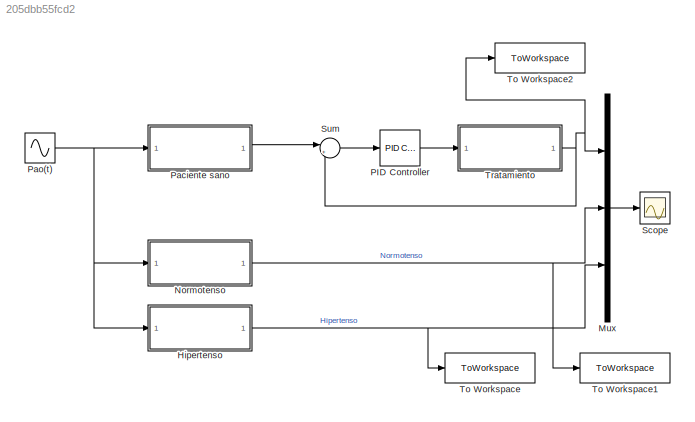
MODEL slx_205dbb55fcd2
KIND model
CONFIG AbsTol = auto
CONFIG EnableMultiTasking = off
CONFIG FixedStep = auto
CONFIG MaxStep = 1e-3
CONFIG MinStep = auto
CONFIG RelTol = 1e-3
CONFIG SampleTimeConstraint = Unconstrained
CONFIG SolverName = ode23s
CONFIG StartTime = 0.0
CONFIG StopTime = 30.0
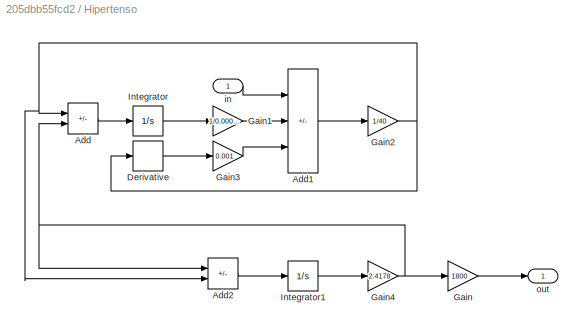
BLOCK [SubSystem] Hipertenso
BLOCK [Sum] Hipertenso/Add
  IconShape = rectangular
  Inputs = +-
BLOCK [Sum] Hipertenso/Add1
  IconShape = rectangular
  Inputs = +--
BLOCK [Sum] Hipertenso/Add2
  IconShape = rectangular
  Inputs = -+
BLOCK [Derivative] Hipertenso/Derivative
BLOCK [Gain] Hipertenso/Gain
  Gain = 1800
BLOCK [Gain] Hipertenso/Gain1
  Gain = 1/0.000220
BLOCK [Gain] Hipertenso/Gain2
  Gain = 1/40
BLOCK [Gain] Hipertenso/Gain3
  Gain = 0.001
BLOCK [Gain] Hipertenso/Gain4
  Gain = 2.4178
BLOCK [Integrator] Hipertenso/Integrator
BLOCK [Integrator] Hipertenso/Integrator1
BLOCK [Inport] Hipertenso/in
BLOCK [Outport] Hipertenso/out
BLOCK [Mux] Mux
  DisplayOption = bar
  Inputs = 3
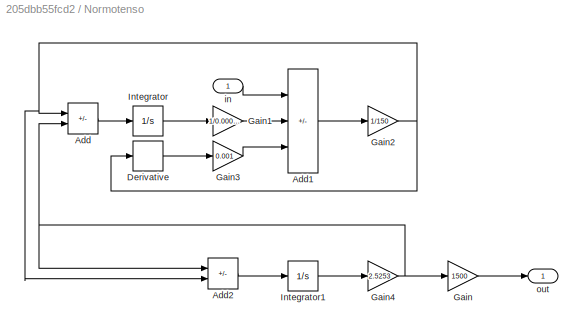
BLOCK [SubSystem] Normotenso
BLOCK [Sum] Normotenso/Add
  IconShape = rectangular
  Inputs = +-
BLOCK [Sum] Normotenso/Add1
  IconShape = rectangular
  Inputs = +--
BLOCK [Sum] Normotenso/Add2
  IconShape = rectangular
  Inputs = -+
BLOCK [Derivative] Normotenso/Derivative
BLOCK [Gain] Normotenso/Gain
  Gain = 1500
BLOCK [Gain] Normotenso/Gain1
  Gain = 1/0.000220
BLOCK [Gain] Normotenso/Gain2
  Gain = 1/150
BLOCK [Gain] Normotenso/Gain3
  Gain = 0.001
BLOCK [Gain] Normotenso/Gain4
  Gain = 2.5253
BLOCK [Integrator] Normotenso/Integrator
BLOCK [Integrator] Normotenso/Integrator1
BLOCK [Inport] Normotenso/in
BLOCK [Outport] Normotenso/out
BLOCK [Reference] PID Controller  REF=slpidlib/PID Controller
  LibrarySourceBlock = simulink/Continuous/PID Controller
  SourceBlock = slpidlib/PID Controller
  SourceType = PID 1dof
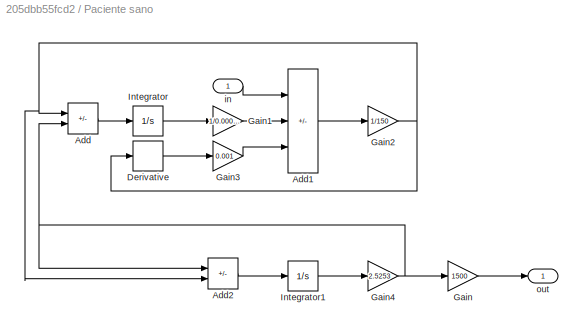
BLOCK [SubSystem] Paciente sano
BLOCK [Sum] Paciente sano/Add
  IconShape = rectangular
  Inputs = +-
BLOCK [Sum] Paciente sano/Add1
  IconShape = rectangular
  Inputs = +--
BLOCK [Sum] Paciente sano/Add2
  IconShape = rectangular
  Inputs = -+
BLOCK [Derivative] Paciente sano/Derivative
BLOCK [Gain] Paciente sano/Gain
  Gain = 1500
BLOCK [Gain] Paciente sano/Gain1
  Gain = 1/0.000220
BLOCK [Gain] Paciente sano/Gain2
  Gain = 1/150
BLOCK [Gain] Paciente sano/Gain3
  Gain = 0.001
BLOCK [Gain] Paciente sano/Gain4
  Gain = 2.5253
BLOCK [Integrator] Paciente sano/Integrator
BLOCK [Integrator] Paciente sano/Integrator1
BLOCK [Inport] Paciente sano/in
BLOCK [Outport] Paciente sano/out
BLOCK [Sin] Pao(t)
  Amplitude = 2.5
  Frequency = 1.5707
BLOCK [Scope] Scope
  Floating = off
  NumInputPorts = 1
  ScopeSpecificationString = Simulink.scopes.TimeScopeBlockCfg('CurrentConfiguration', extmgr.ConfigurationSet(extmgr.Configuration('Core','General UI',true),extmgr.Configuration('Core','Source UI',true),extmgr.Configuration('Sources','WiredSimulink',true),extmgr.Configuration('Visuals','Time Domain',true,'SerializedDisplays',{struct('MinYLimReal','-2.92943','MaxYLimReal','2.92943','YLabelReal','','MinYLimMag','0.00000','MaxY...<+1771ch>
BLOCK [Sum] Sum
  Inputs = |+-
BLOCK [ToWorkspace] To Workspace
  FixptAsFi = on
  MaxDataPoints = inf
  SampleTime = -1
  SaveFormat = Structure With Time
  VariableName = hipertenso
BLOCK [ToWorkspace] To Workspace1
  FixptAsFi = on
  MaxDataPoints = inf
  SampleTime = -1
  SaveFormat = Structure With Time
  VariableName = normotenso
BLOCK [ToWorkspace] To Workspace2
  FixptAsFi = on
  MaxDataPoints = inf
  SampleTime = -1
  SaveFormat = Structure With Time
  VariableName = tratamiento
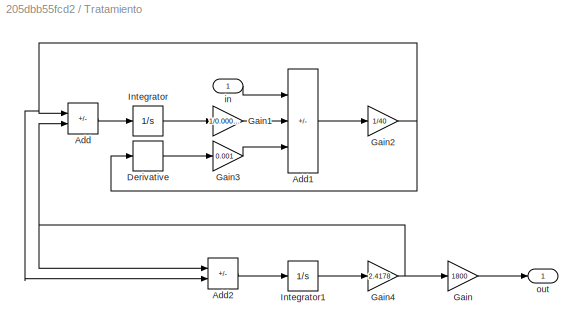
BLOCK [SubSystem] Tratamiento
BLOCK [Sum] Tratamiento/Add
  IconShape = rectangular
  Inputs = +-
BLOCK [Sum] Tratamiento/Add1
  IconShape = rectangular
  Inputs = +--
BLOCK [Sum] Tratamiento/Add2
  IconShape = rectangular
  Inputs = -+
BLOCK [Derivative] Tratamiento/Derivative
BLOCK [Gain] Tratamiento/Gain
  Gain = 1800
BLOCK [Gain] Tratamiento/Gain1
  Gain = 1/0.000220
BLOCK [Gain] Tratamiento/Gain2
  Gain = 1/40
BLOCK [Gain] Tratamiento/Gain3
  Gain = 0.001
BLOCK [Gain] Tratamiento/Gain4
  Gain = 2.4178
BLOCK [Integrator] Tratamiento/Integrator
BLOCK [Integrator] Tratamiento/Integrator1
BLOCK [Inport] Tratamiento/in
BLOCK [Outport] Tratamiento/out
LINE Hipertenso/Add1:1 -> Hipertenso/Gain2:1
LINE Hipertenso/Add2:1 -> Hipertenso/Integrator1:1
LINE Hipertenso/Add:1 -> Hipertenso/Integrator:1
LINE Hipertenso/Derivative:1 -> Hipertenso/Gain3:1
LINE Hipertenso/Gain1:1 -> Hipertenso/Add1:2
NET Hipertenso/Gain2:1 -> Hipertenso/Add2:2, Hipertenso/Add:1, Hipertenso/Derivative:1
LINE Hipertenso/Gain3:1 -> Hipertenso/Add1:3
NET Hipertenso/Gain4:1 -> Hipertenso/Add2:1, Hipertenso/Add:2, Hipertenso/Gain:1
LINE Hipertenso/Gain:1 -> Hipertenso/out:1
LINE Hipertenso/Integrator1:1 -> Hipertenso/Gain4:1
LINE Hipertenso/Integrator:1 -> Hipertenso/Gain1:1
LINE Hipertenso/in:1 -> Hipertenso/Add1:1
NET Hipertenso:1 -> Mux:3, To Workspace:1
LINE Mux:1 -> Scope:1
LINE Normotenso/Add1:1 -> Normotenso/Gain2:1
LINE Normotenso/Add2:1 -> Normotenso/Integrator1:1
LINE Normotenso/Add:1 -> Normotenso/Integrator:1
LINE Normotenso/Derivative:1 -> Normotenso/Gain3:1
LINE Normotenso/Gain1:1 -> Normotenso/Add1:2
NET Normotenso/Gain2:1 -> Normotenso/Add2:2, Normotenso/Add:1, Normotenso/Derivative:1
LINE Normotenso/Gain3:1 -> Normotenso/Add1:3
NET Normotenso/Gain4:1 -> Normotenso/Add2:1, Normotenso/Add:2, Normotenso/Gain:1
LINE Normotenso/Gain:1 -> Normotenso/out:1
LINE Normotenso/Integrator1:1 -> Normotenso/Gain4:1
LINE Normotenso/Integrator:1 -> Normotenso/Gain1:1
LINE Normotenso/in:1 -> Normotenso/Add1:1
NET Normotenso:1 -> Mux:2, To Workspace1:1
LINE PID Controller:1 -> Tratamiento:1
LINE Paciente sano/Add1:1 -> Paciente sano/Gain2:1
LINE Paciente sano/Add2:1 -> Paciente sano/Integrator1:1
LINE Paciente sano/Add:1 -> Paciente sano/Integrator:1
LINE Paciente sano/Derivative:1 -> Paciente sano/Gain3:1
LINE Paciente sano/Gain1:1 -> Paciente sano/Add1:2
NET Paciente sano/Gain2:1 -> Paciente sano/Add2:2, Paciente sano/Add:1, Paciente sano/Derivative:1
LINE Paciente sano/Gain3:1 -> Paciente sano/Add1:3
NET Paciente sano/Gain4:1 -> Paciente sano/Add2:1, Paciente sano/Add:2, Paciente sano/Gain:1
LINE Paciente sano/Gain:1 -> Paciente sano/out:1
LINE Paciente sano/Integrator1:1 -> Paciente sano/Gain4:1
LINE Paciente sano/Integrator:1 -> Paciente sano/Gain1:1
LINE Paciente sano/in:1 -> Paciente sano/Add1:1
LINE Paciente sano:1 -> Sum:1
NET Pao(t):1 -> Hipertenso:1, Normotenso:1, Paciente sano:1
LINE Sum:1 -> PID Controller:1
LINE Tratamiento/Add1:1 -> Tratamiento/Gain2:1
LINE Tratamiento/Add2:1 -> Tratamiento/Integrator1:1
LINE Tratamiento/Add:1 -> Tratamiento/Integrator:1
LINE Tratamiento/Derivative:1 -> Tratamiento/Gain3:1
LINE Tratamiento/Gain1:1 -> Tratamiento/Add1:2
NET Tratamiento/Gain2:1 -> Tratamiento/Add2:2, Tratamiento/Add:1, Tratamiento/Derivative:1
LINE Tratamiento/Gain3:1 -> Tratamiento/Add1:3
NET Tratamiento/Gain4:1 -> Tratamiento/Add2:1, Tratamiento/Add:2, Tratamiento/Gain:1
LINE Tratamiento/Gain:1 -> Tratamiento/out:1
LINE Tratamiento/Integrator1:1 -> Tratamiento/Gain4:1
LINE Tratamiento/Integrator:1 -> Tratamiento/Gain1:1
LINE Tratamiento/in:1 -> Tratamiento/Add1:1
NET Tratamiento:1 -> Mux:1, Sum:2, To Workspace2:1
note: NET lines group one-source signal fan-out (src -> all destinations, sorted); 1:1 wires keep LINE
